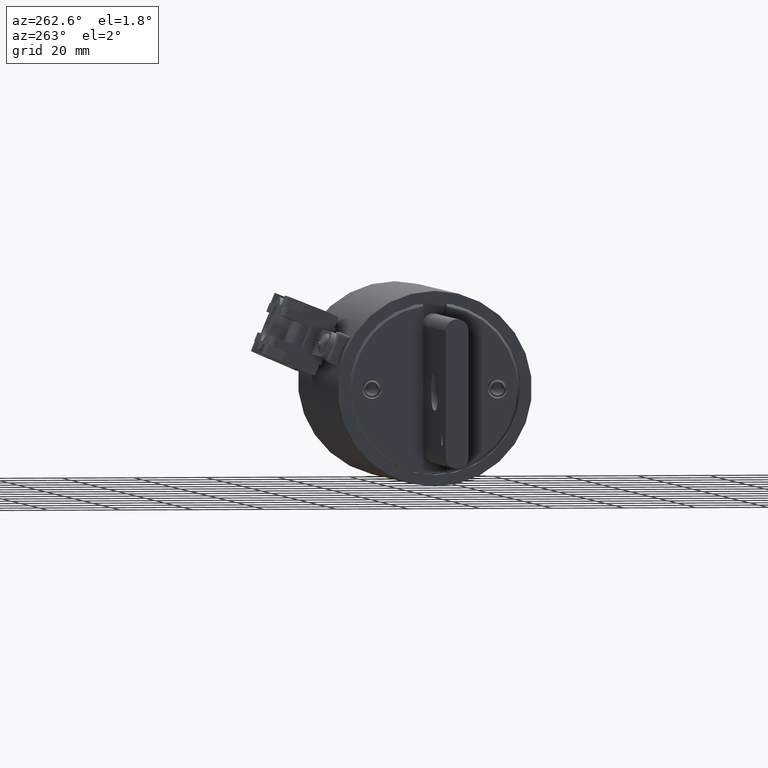
[diagram: clean part render]
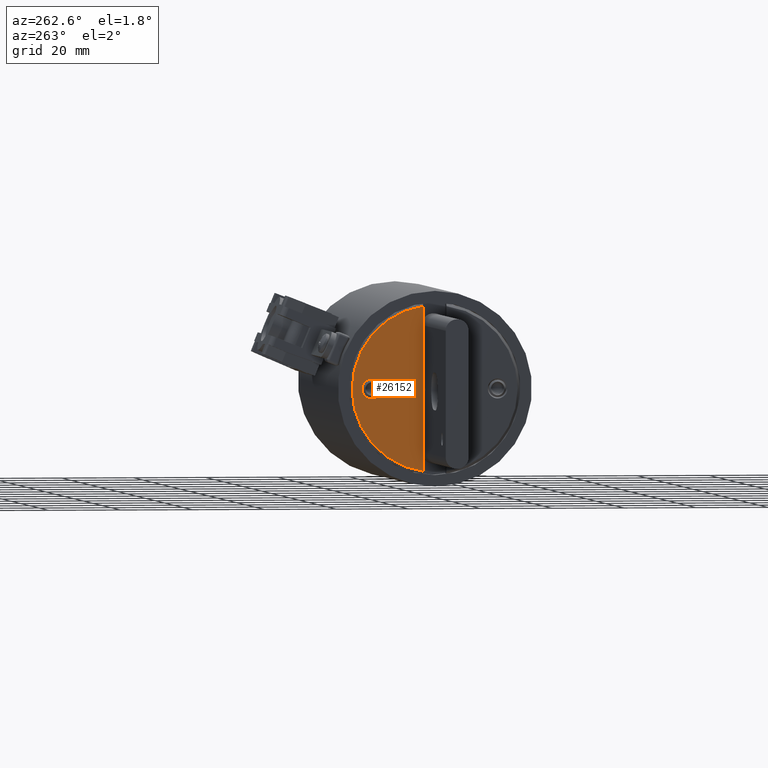
[diagram: same view with one face highlighted and labeled with its STEP entity id]
A machine part, auxiliary view. The second image highlights one B-rep face of the part: STEP entity #26152.
In plain terms, the highlighted planar face has unit normal (1, 0, 0).
Its self-contained STEP definition (entity closure, byte-faithful):
#320 = ORIENTED_EDGE ( 'NONE', *, *, #17659, .F. ) ;
#2102 = FACE_OUTER_BOUND ( 'NONE', #4667, .T. ) ;
#3948 = DIRECTION ( 'NONE',  ( 1.000000000000000000, 0.0000000000000000000, 0.0000000000000000000 ) ) ;
#4560 = ORIENTED_EDGE ( 'NONE', *, *, #4670, .F. ) ;
#4667 = EDGE_LOOP ( 'NONE', ( #15069, #320 ) ) ;
#4670 = EDGE_CURVE ( 'NONE', #41475, #41475, #14298, .T. ) ;
#8012 = CARTESIAN_POINT ( 'NONE',  ( -1.687500000000000000, -1.488310777201891700E-016, 1.230886798966960700E-032 ) ) ;
#8307 = DIRECTION ( 'NONE',  ( -0.0000000000000000000, -0.0000000000000000000, -1.000000000000000000 ) ) ;
#11102 = AXIS2_PLACEMENT_3D ( 'NONE', #23988, #3948, #27384 ) ;
#11397 = DIRECTION ( 'NONE',  ( 0.0000000000000000000, 0.0000000000000000000, -1.000000000000000000 ) ) ;
#14216 = EDGE_CURVE ( 'NONE', #38341, #33771, #19140, .T. ) ;
#14298 = CIRCLE ( 'NONE', #39629, 0.1087500000000000400 ) ;
#14890 = VECTOR ( 'NONE', #8307, 39.37007874015748100 ) ;
#15069 = ORIENTED_EDGE ( 'NONE', *, *, #14216, .T. ) ;
#16047 = CARTESIAN_POINT ( 'NONE',  ( -1.687500000000000000, 0.6874999999999998900, 1.230886798966960700E-032 ) ) ;
#17659 = EDGE_CURVE ( 'NONE', #38341, #33771, #31648, .T. ) ;
#18931 = DIRECTION ( 'NONE',  ( 0.0000000000000000000, 0.0000000000000000000, 1.000000000000000000 ) ) ;
#19140 = CIRCLE ( 'NONE', #29772, 0.9059999999999991400 ) ;
#19408 = CARTESIAN_POINT ( 'NONE',  ( -1.687500000000000000, 0.1279999999999998600, 0.8969124817951853500 ) ) ;
#19916 = FACE_BOUND ( 'NONE', #34311, .T. ) ;
#23988 = CARTESIAN_POINT ( 'NONE',  ( -1.687500000000000000, -1.488310777201891700E-016, 1.230886798966960700E-032 ) ) ;
#26152 = ADVANCED_FACE ( 'NONE', ( #19916, #2102 ), #27250, .F. ) ;
#26359 = CARTESIAN_POINT ( 'NONE',  ( -1.687500000000000000, 0.1279999999999998400, -0.8969124817951852300 ) ) ;
#27250 = PLANE ( 'NONE',  #11102 ) ;
#27384 = DIRECTION ( 'NONE',  ( 0.0000000000000000000, 0.0000000000000000000, -1.000000000000000000 ) ) ;
#29772 = AXIS2_PLACEMENT_3D ( 'NONE', #8012, #31441, #11397 ) ;
#31441 = DIRECTION ( 'NONE',  ( -1.000000000000000000, -0.0000000000000000000, -0.0000000000000000000 ) ) ;
#31648 = LINE ( 'NONE', #38175, #14890 ) ;
#33771 = VERTEX_POINT ( 'NONE', #26359 ) ;
#34311 = EDGE_LOOP ( 'NONE', ( #4560 ) ) ;
#34635 = DIRECTION ( 'NONE',  ( -1.000000000000000000, -0.0000000000000000000, -0.0000000000000000000 ) ) ;
#38175 = CARTESIAN_POINT ( 'NONE',  ( -1.687500000000000000, 0.1279999999999998600, -0.9360000000000001700 ) ) ;
#38341 = VERTEX_POINT ( 'NONE', #19408 ) ;
#38890 = CARTESIAN_POINT ( 'NONE',  ( -1.687500000000000000, 0.6874999999999998900, 0.1087500000000000400 ) ) ;
#39629 = AXIS2_PLACEMENT_3D ( 'NONE', #16047, #34635, #18931 ) ;
#41475 = VERTEX_POINT ( 'NONE', #38890 ) ;